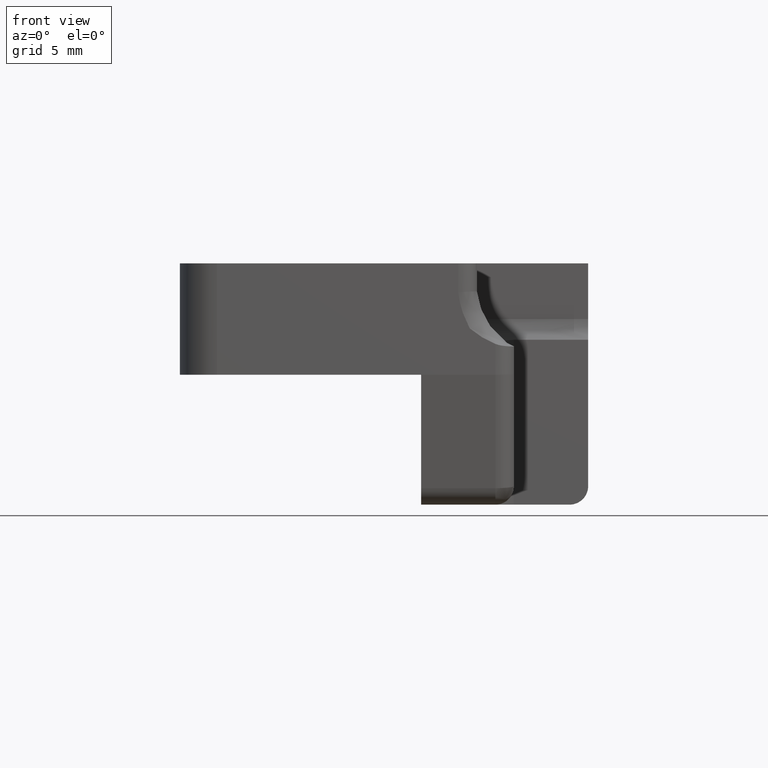
[diagram: clean part render]
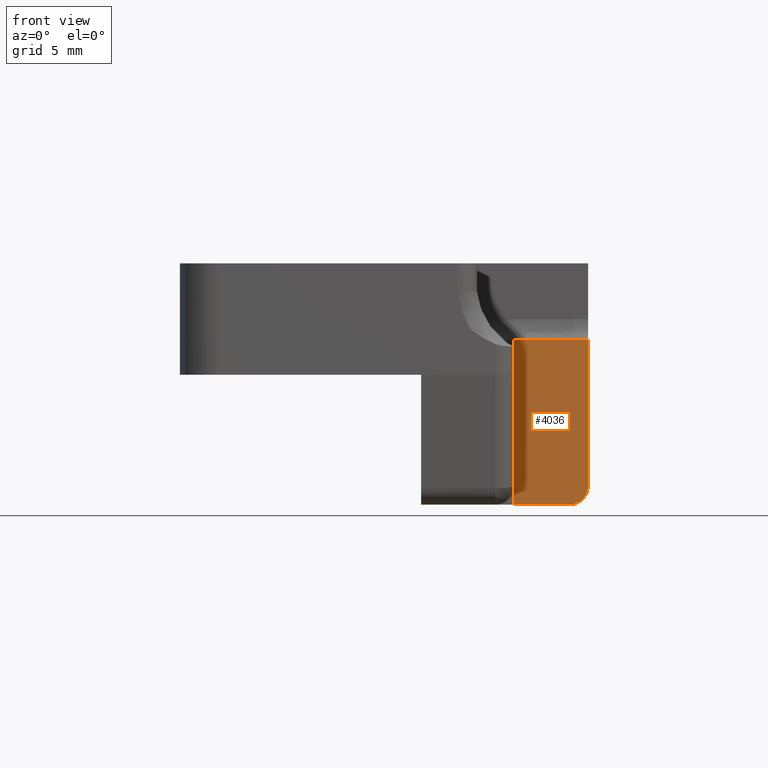
[diagram: same view with one face highlighted and labeled with its STEP entity id]
A machine part, front view. The second image highlights one B-rep face of the part: STEP entity #4036.
In plain terms, the highlighted face is a freeform B-spline surface patch.
Its self-contained STEP definition (entity closure, byte-faithful):
#2400=CARTESIAN_POINT('',(-171.0,-14.0,40.381966011249887));
#2401=VERTEX_POINT('',#2400);
#2427=CARTESIAN_POINT('',(-167.0,-14.0,40.381966011249887));
#2428=VERTEX_POINT('',#2427);
#2429=CARTESIAN_POINT('',(-167.0,-14.0,40.381966011249887));
#2430=CARTESIAN_POINT('',(-171.0,-14.0,40.381966011249887));
#2431=QUASI_UNIFORM_CURVE('',1,(#2429,#2430),.UNSPECIFIED.,.F.,.U.);
#2432=EDGE_CURVE('',#2428,#2401,#2431,.T.);
#3361=CARTESIAN_POINT('',(-168.0,-14.0,31.500000000000000));
#3362=VERTEX_POINT('',#3361);
#3363=CARTESIAN_POINT('',(-167.0,-14.0,32.500000000000000));
#3364=VERTEX_POINT('',#3363);
#3365=CARTESIAN_POINT('',(-168.0,-14.0,31.500000000000000));
#3366=CARTESIAN_POINT('',(-166.999999999999940,-13.999999999999998,31.500000000000000));
#3367=CARTESIAN_POINT('',(-167.0,-14.0,32.500000000000000));
#3375=(BOUNDED_CURVE()B_SPLINE_CURVE(2,(#3365,#3366,#3367),.UNSPECIFIED.,.F.,.U.)CURVE()GEOMETRIC_REPRESENTATION_ITEM()QUASI_UNIFORM_CURVE()RATIONAL_B_SPLINE_CURVE((1.0,0.707106781186548,1.0))REPRESENTATION_ITEM(''));
#3376=EDGE_CURVE('',#3362,#3364,#3375,.T.);
#3903=CARTESIAN_POINT('',(-171.0,-14.0,31.500000000000000));
#3904=VERTEX_POINT('',#3903);
#3920=CARTESIAN_POINT('',(-171.0,-14.0,31.500000000000000));
#3921=CARTESIAN_POINT('',(-171.0,-14.0,40.381966011249887));
#3922=QUASI_UNIFORM_CURVE('',1,(#3920,#3921),.UNSPECIFIED.,.F.,.U.);
#3923=EDGE_CURVE('',#3904,#2401,#3922,.T.);
#4016=CARTESIAN_POINT('',(-171.199799992247190,-14.0,40.825620363051932));
#4017=CARTESIAN_POINT('',(-171.199799992247190,-14.0,31.056345568786998));
#4018=CARTESIAN_POINT('',(-166.800199900464410,-14.0,40.825620363051932));
#4019=CARTESIAN_POINT('',(-166.800199900464410,-14.0,31.056345568786998));
#4020=B_SPLINE_SURFACE_WITH_KNOTS('',1,1,((#4016,#4018),(#4017,#4019)),.UNSPECIFIED.,.F.,.F.,.U.,(2,2),(2,2),(0.0,9.769274794264941),(0.0,4.399600091782810),.UNSPECIFIED.);
#4021=CARTESIAN_POINT('',(-171.0,-14.0,31.500000000000000));
#4022=CARTESIAN_POINT('',(-168.0,-14.0,31.500000000000000));
#4023=QUASI_UNIFORM_CURVE('',1,(#4021,#4022),.UNSPECIFIED.,.F.,.U.);
#4024=EDGE_CURVE('',#3904,#3362,#4023,.T.);
#4025=ORIENTED_EDGE('',*,*,#4024,.T.);
#4026=ORIENTED_EDGE('',*,*,#3376,.T.);
#4027=CARTESIAN_POINT('',(-167.0,-14.0,32.500000000000000));
#4028=CARTESIAN_POINT('',(-167.0,-14.0,40.381966011249887));
#4029=QUASI_UNIFORM_CURVE('',1,(#4027,#4028),.UNSPECIFIED.,.F.,.U.);
#4030=EDGE_CURVE('',#3364,#2428,#4029,.T.);
#4031=ORIENTED_EDGE('',*,*,#4030,.T.);
#4032=ORIENTED_EDGE('',*,*,#2432,.T.);
#4033=ORIENTED_EDGE('',*,*,#3923,.F.);
#4034=EDGE_LOOP('',(#4025,#4026,#4031,#4032,#4033));
#4035=FACE_OUTER_BOUND('',#4034,.T.);
#4036=ADVANCED_FACE('',(#4035),#4020,.T.);